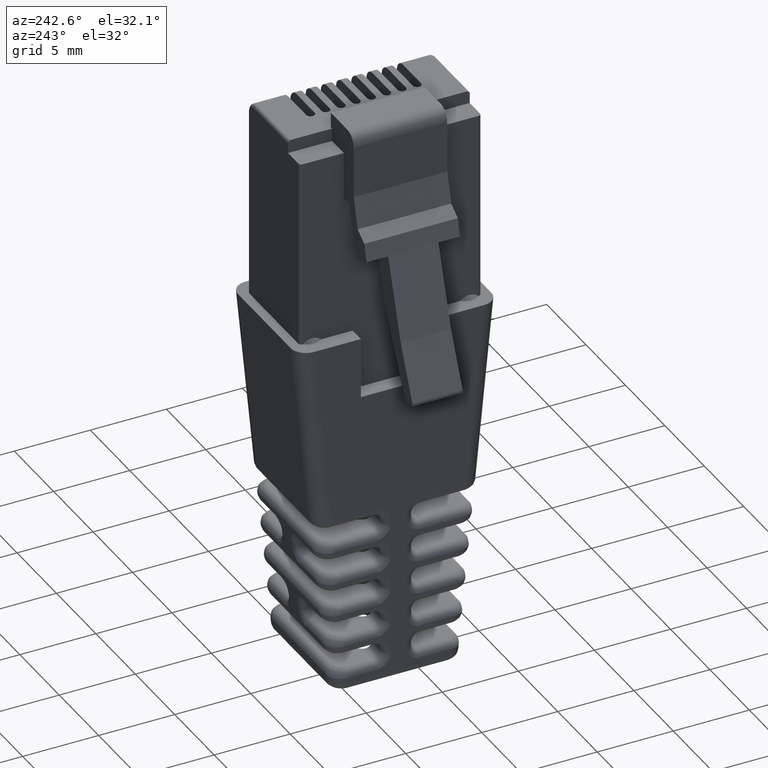
[diagram: clean part render]
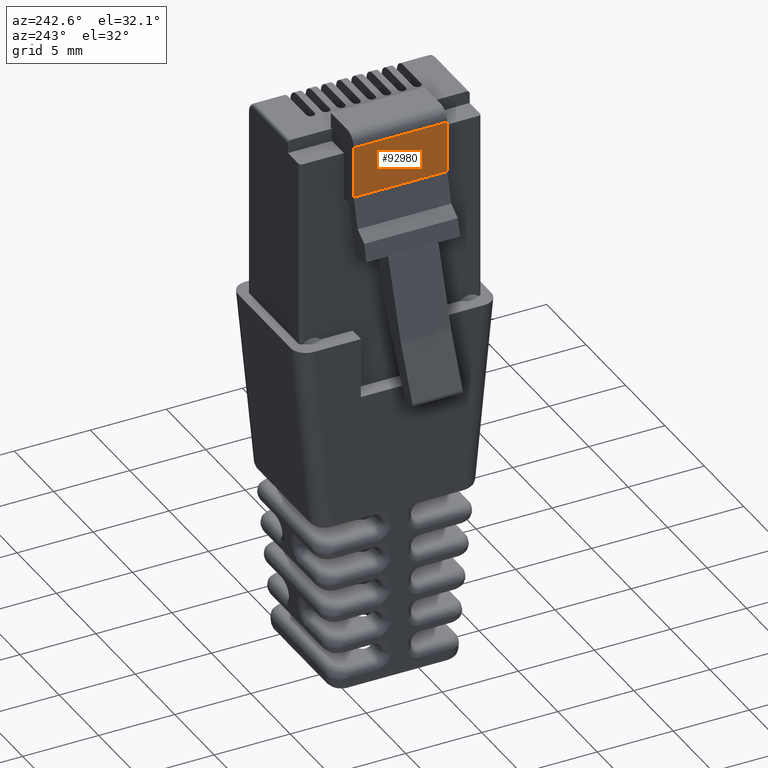
[diagram: same view with one face highlighted and labeled with its STEP entity id]
A machine part, auxiliary view. The second image highlights one B-rep face of the part: STEP entity #92980.
In plain terms, the highlighted planar face has unit normal (1, -0, -0).
Its self-contained STEP definition (entity closure, byte-faithful):
#90230=CARTESIAN_POINT('',(0.,9.16886962969768,-10.05));
#90240=DIRECTION('',(-1.,3.39788276367002E-32,1.66533453693774E-16));
#90250=VECTOR('',#90240,1.);
#90260=LINE('',#90230,#90250);
#90270=CARTESIAN_POINT('',(14.5031426136379,9.16886962969769,-10.05));
#90280=VERTEX_POINT('',#90270);
#90290=CARTESIAN_POINT('',(8.35314261363792,9.16886962969768,-10.05));
#90300=VERTEX_POINT('',#90290);
#90310=EDGE_CURVE('',#90280,#90300,#90260,.T.);
#92680=CARTESIAN_POINT('',(14.4781426136379,9.16886962969768,-14.25));
#92690=DIRECTION('',(3.38963670212153E-32,-1.,3.88578058618805E-16));
#92700=DIRECTION('',(-1.66533453693773E-16,-3.88578058618805E-16,-1.));
#92710=AXIS2_PLACEMENT_3D('',#92680,#92690,#92700);
#92720=PLANE('',#92710);
#92730=CARTESIAN_POINT('',(14.5031426136379,9.16886962969768,-14.25));
#92740=DIRECTION('',(1.66533453693773E-16,3.88578058618805E-16,1.));
#92750=VECTOR('',#92740,1000.);
#92760=LINE('',#92730,#92750);
#92770=CARTESIAN_POINT('',(14.5031426136379,9.16886962969768,-13.45));
#92780=VERTEX_POINT('',#92770);
#92790=EDGE_CURVE('',#92780,#90280,#92760,.T.);
#92800=ORIENTED_EDGE('',*,*,#92790,.F.);
#92810=ORIENTED_EDGE('',*,*,#90310,.F.);
#92820=CARTESIAN_POINT('',(8.35314261363792,9.16886962969768,-14.25));
#92830=DIRECTION('',(1.66533453693773E-16,3.88578058618805E-16,1.));
#92840=VECTOR('',#92830,1000.);
#92850=LINE('',#92820,#92840);
#92860=CARTESIAN_POINT('',(8.35314261363792,9.16886962969768,-13.45));
#92870=VERTEX_POINT('',#92860);
#92880=EDGE_CURVE('',#92870,#90300,#92850,.T.);
#92890=ORIENTED_EDGE('',*,*,#92880,.T.);
#92900=CARTESIAN_POINT('',(11.4281426136379,9.16886962969768,-13.45));
#92910=DIRECTION('',(1.,-3.08148791101958E-32,-1.66533453693773E-16));
#92920=VECTOR('',#92910,1.);
#92930=LINE('',#92900,#92920);
#92940=EDGE_CURVE('',#92870,#92780,#92930,.T.);
#92950=ORIENTED_EDGE('',*,*,#92940,.F.);
#92960=EDGE_LOOP('',(#92950,#92890,#92810,#92800));
#92970=FACE_OUTER_BOUND('',#92960,.T.);
#92980=ADVANCED_FACE('',(#92970),#92720,.F.);